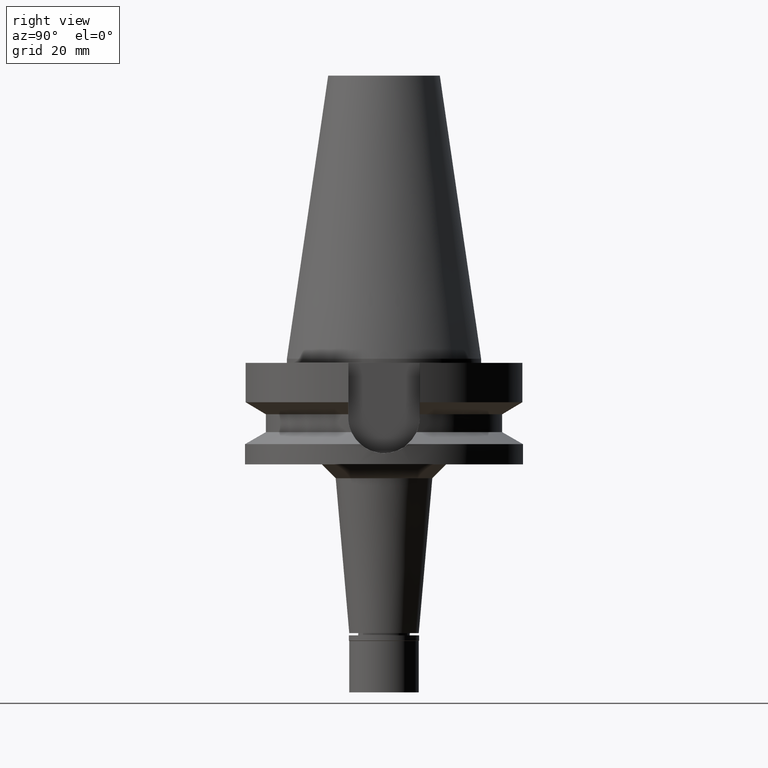
[diagram: clean part render]
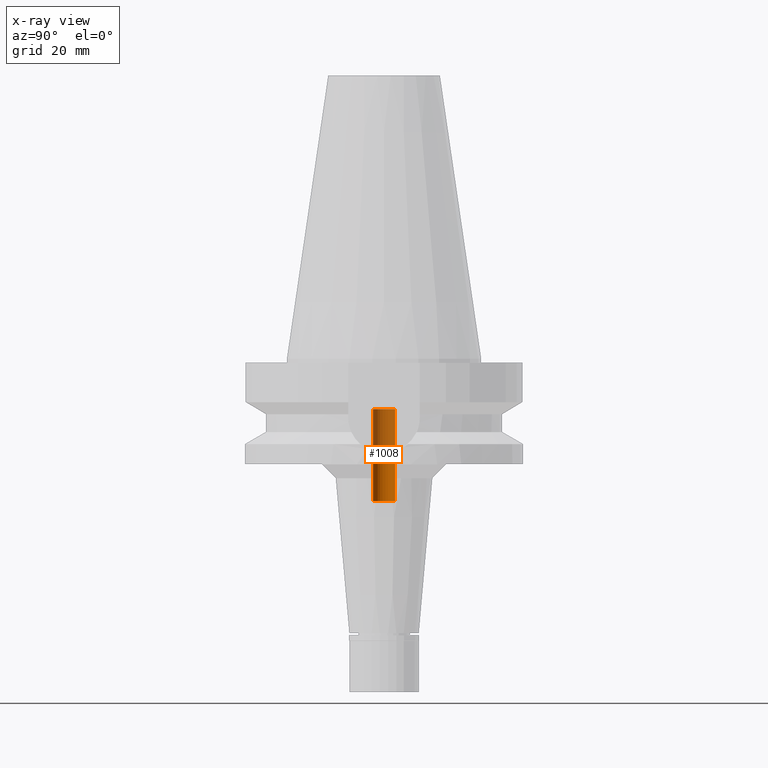
[diagram: x-ray — body ghosted, one internal face saturated and labeled with its STEP entity id]
A machine part, right view, then the same camera in x-ray: the body is ghosted and one INTERNAL B-rep face — a face not visible from any outside direction — is saturated and labeled: STEP entity #1008.
In plain terms, the highlighted cylindrical surface (edge-blend (fillet) strip) has radius 4 mm, axis along (0, 0, -1).
Its self-contained STEP definition (entity closure, byte-faithful):
#46 = VERTEX_POINT ( 'NONE', #2220 ) ;
#54 = CYLINDRICAL_SURFACE ( 'NONE', #1493, 4.000000000000000000 ) ;
#110 = CARTESIAN_POINT ( 'NONE',  ( 0.0000000000000000000, -4.000000000000000000, -51.20000000000000284 ) ) ;
#262 = CARTESIAN_POINT ( 'NONE',  ( 0.0000000000000000000, 4.000000000000000000, -18.19999999999999929 ) ) ;
#309 = FACE_OUTER_BOUND ( 'NONE', #1858, .T. ) ;
#321 = DIRECTION ( 'NONE',  ( 0.0000000000000000000, -1.000000000000000000, 0.0000000000000000000 ) ) ;
#440 = EDGE_CURVE ( 'NONE', #2085, #2552, #567, .T. ) ;
#567 = LINE ( 'NONE', #798, #1934 ) ;
#679 = DIRECTION ( 'NONE',  ( 0.0000000000000000000, 1.000000000000000000, 0.0000000000000000000 ) ) ;
#681 = CARTESIAN_POINT ( 'NONE',  ( 0.0000000000000000000, 2.603354165626999772E-14, -51.20000000000000284 ) ) ;
#695 = CARTESIAN_POINT ( 'NONE',  ( 0.0000000000000000000, 2.603354165626999772E-14, -18.19999999999999929 ) ) ;
#798 = CARTESIAN_POINT ( 'NONE',  ( 0.0000000000000000000, 4.000000000000000000, -51.20000000000000284 ) ) ;
#848 = ORIENTED_EDGE ( 'NONE', *, *, #1582, .T. ) ;
#1008 = ADVANCED_FACE ( 'NONE', ( #309 ), #54, .F. ) ;
#1029 = DIRECTION ( 'NONE',  ( 0.0000000000000000000, -1.000000000000000000, 0.0000000000000000000 ) ) ;
#1155 = DIRECTION ( 'NONE',  ( 0.0000000000000000000, 0.0000000000000000000, -1.000000000000000000 ) ) ;
#1246 = ORIENTED_EDGE ( 'NONE', *, *, #2434, .T. ) ;
#1493 = AXIS2_PLACEMENT_3D ( 'NONE', #1511, #1789, #1029 ) ;
#1511 = CARTESIAN_POINT ( 'NONE',  ( 0.0000000000000000000, 2.603354165626999772E-14, 112.5799999999999983 ) ) ;
#1523 = AXIS2_PLACEMENT_3D ( 'NONE', #695, #2963, #679 ) ;
#1582 = EDGE_CURVE ( 'NONE', #2047, #2085, #1967, .T. ) ;
#1616 = ORIENTED_EDGE ( 'NONE', *, *, #440, .T. ) ;
#1665 = LINE ( 'NONE', #2943, #2044 ) ;
#1708 = AXIS2_PLACEMENT_3D ( 'NONE', #681, #1155, #321 ) ;
#1789 = DIRECTION ( 'NONE',  ( 0.0000000000000000000, 0.0000000000000000000, -1.000000000000000000 ) ) ;
#1858 = EDGE_LOOP ( 'NONE', ( #1246, #3110, #848, #1616 ) ) ;
#1934 = VECTOR ( 'NONE', #2512, 1000.000000000000000 ) ;
#1967 = CIRCLE ( 'NONE', #1708, 4.000000000000000000 ) ;
#2044 = VECTOR ( 'NONE', #2708, 1000.000000000000000 ) ;
#2047 = VERTEX_POINT ( 'NONE', #110 ) ;
#2085 = VERTEX_POINT ( 'NONE', #3063 ) ;
#2220 = CARTESIAN_POINT ( 'NONE',  ( 0.0000000000000000000, -4.000000000000000000, -18.19999999999999929 ) ) ;
#2249 = CIRCLE ( 'NONE', #1523, 4.000000000000000000 ) ;
#2434 = EDGE_CURVE ( 'NONE', #2552, #46, #2249, .T. ) ;
#2452 = EDGE_CURVE ( 'NONE', #2047, #46, #1665, .T. ) ;
#2512 = DIRECTION ( 'NONE',  ( 0.0000000000000000000, 0.0000000000000000000, 1.000000000000000000 ) ) ;
#2552 = VERTEX_POINT ( 'NONE', #262 ) ;
#2708 = DIRECTION ( 'NONE',  ( 0.0000000000000000000, 0.0000000000000000000, 1.000000000000000000 ) ) ;
#2943 = CARTESIAN_POINT ( 'NONE',  ( 0.0000000000000000000, -4.000000000000000000, -51.20000000000000284 ) ) ;
#2963 = DIRECTION ( 'NONE',  ( 0.0000000000000000000, 0.0000000000000000000, 1.000000000000000000 ) ) ;
#3063 = CARTESIAN_POINT ( 'NONE',  ( 0.0000000000000000000, 4.000000000000000000, -51.20000000000000284 ) ) ;
#3110 = ORIENTED_EDGE ( 'NONE', *, *, #2452, .F. ) ;